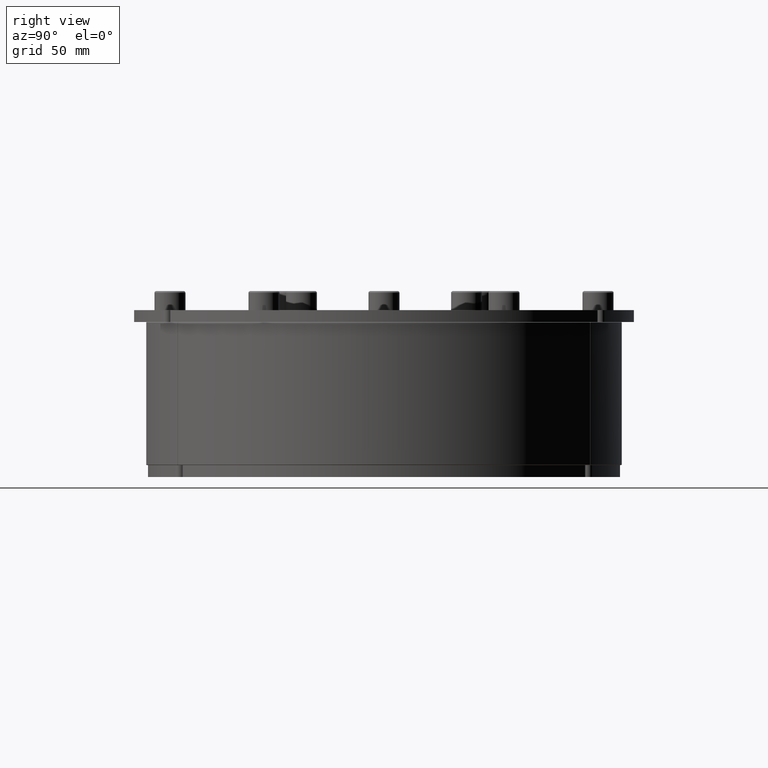
[diagram: clean part render]
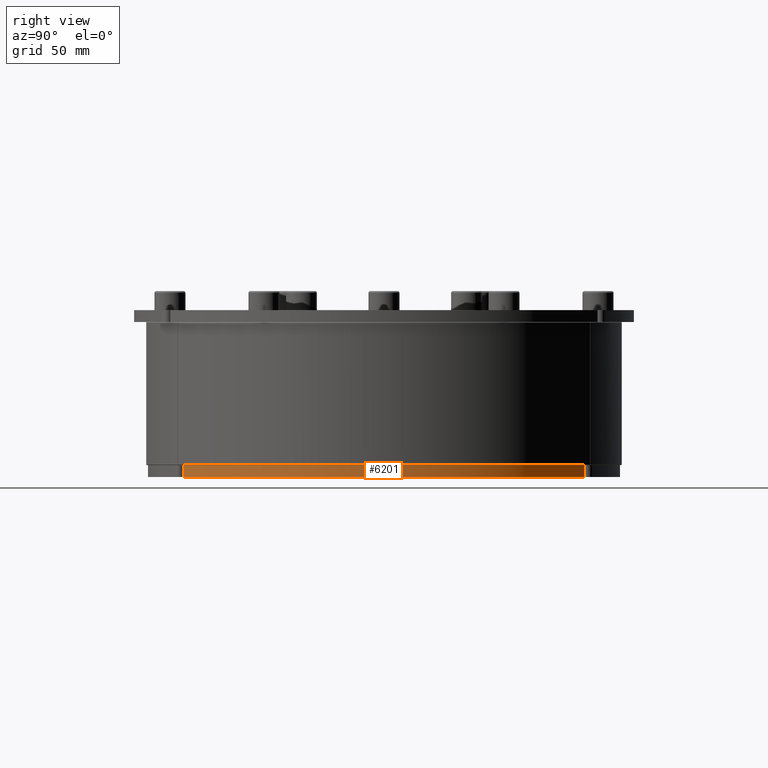
[diagram: same view with one face highlighted and labeled with its STEP entity id]
A machine part, right view. The second image highlights one B-rep face of the part: STEP entity #6201.
In plain terms, the highlighted cylindrical surface (partial cylindrical patch) has radius 99 mm, axis along (0, 0, -1).
Its self-contained STEP definition (entity closure, byte-faithful):
#5638=CARTESIAN_POINT('',(46.824675401218357,87.226428183037143,5.0));
#5639=VERTEX_POINT('',#5638);
#5657=CARTESIAN_POINT('',(46.824675401218357,87.226428183037143,0.0));
#5658=VERTEX_POINT('',#5657);
#5666=CARTESIAN_POINT('',(46.824675401218371,87.226428183037143,0.0));
#5667=DIRECTION('',(0.0,0.0,1.0));
#5668=VECTOR('',#5667,5.0);
#5669=LINE('',#5666,#5668);
#5670=EDGE_CURVE('',#5658,#5639,#5669,.T.);
#5712=CARTESIAN_POINT('',(-98.952640388498281,3.061855670103095,5.0));
#5713=VERTEX_POINT('',#5712);
#5714=CARTESIAN_POINT('',(0.0,0.0,5.0));
#5715=DIRECTION('',(0.0,0.0,-1.0));
#5716=DIRECTION('',(0.491226760396705,0.871031727246578,0.0));
#5717=AXIS2_PLACEMENT_3D('',#5714,#5715,#5716);
#5718=CIRCLE('',#5717,99.0);
#5719=EDGE_CURVE('',#5713,#5639,#5718,.T.);
#6105=CARTESIAN_POINT('',(-98.952640388498281,3.061855670103095,0.0));
#6106=VERTEX_POINT('',#6105);
#6107=CARTESIAN_POINT('',(-98.952640388498281,3.061855670103095,5.0));
#6108=DIRECTION('',(0.0,0.0,-1.0));
#6109=VECTOR('',#6108,5.0);
#6110=LINE('',#6107,#6109);
#6111=EDGE_CURVE('',#5713,#6106,#6110,.T.);
#6184=CARTESIAN_POINT('',(0.0,0.0,0.0));
#6185=DIRECTION('',(0.0,0.0,1.0));
#6186=DIRECTION('',(0.491226760396705,0.871031727246578,0.0));
#6187=AXIS2_PLACEMENT_3D('',#6184,#6185,#6186);
#6188=CYLINDRICAL_SURFACE('',#6187,99.000000000000014);
#6189=ORIENTED_EDGE('',*,*,#5670,.F.);
#6190=CARTESIAN_POINT('',(0.0,0.0,0.0));
#6191=DIRECTION('',(0.0,0.0,1.0));
#6192=DIRECTION('',(0.491226760396705,0.871031727246578,0.0));
#6193=AXIS2_PLACEMENT_3D('',#6190,#6191,#6192);
#6194=CIRCLE('',#6193,99.0);
#6195=EDGE_CURVE('',#5658,#6106,#6194,.T.);
#6196=ORIENTED_EDGE('',*,*,#6195,.T.);
#6197=ORIENTED_EDGE('',*,*,#6111,.F.);
#6198=ORIENTED_EDGE('',*,*,#5719,.T.);
#6199=EDGE_LOOP('',(#6189,#6196,#6197,#6198));
#6200=FACE_OUTER_BOUND('',#6199,.T.);
#6201=ADVANCED_FACE('',(#6200),#6188,.T.);